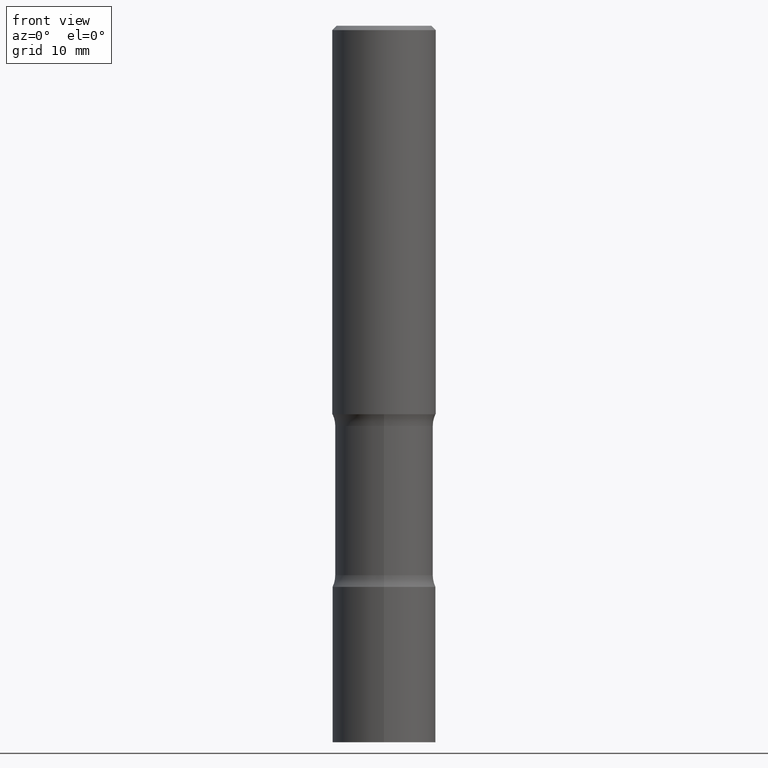
[diagram: clean part render]
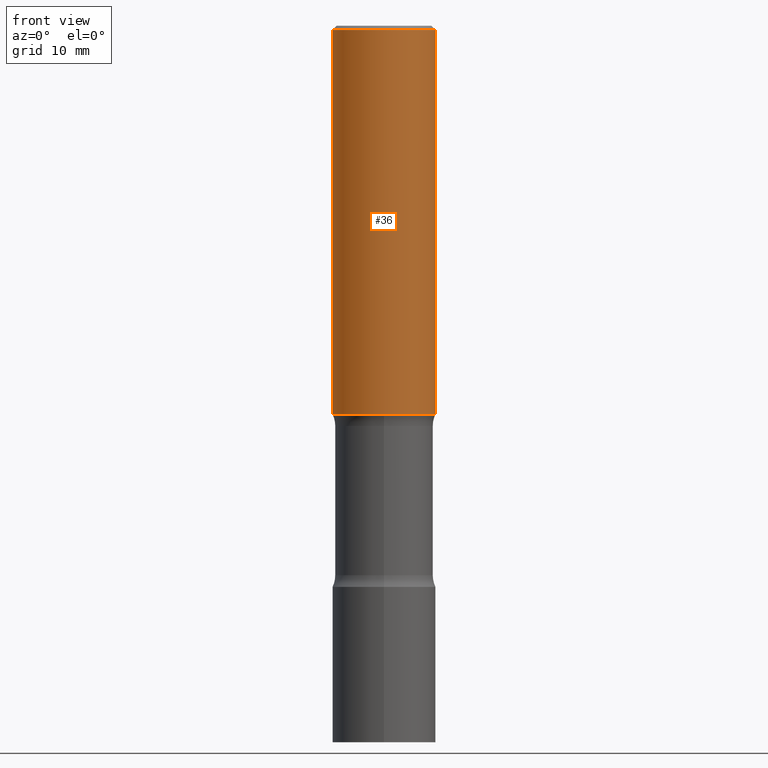
[diagram: same view with one face highlighted and labeled with its STEP entity id]
A machine part, front view. The second image highlights one B-rep face of the part: STEP entity #36.
In plain terms, the highlighted cylindrical surface (partial cylindrical patch) has radius 5.9995 mm, axis along (-0, 0, 1).
Its self-contained STEP definition (entity closure, byte-faithful):
#36 = ADVANCED_FACE ( 'NONE', ( #372 ), #124, .T. ) ;
#38 = VECTOR ( 'NONE', #110, 39.37007874015748143 ) ;
#59 = CARTESIAN_POINT ( 'NONE',  ( 0.2361999999999997712, -1.690279253850497193E-15, -0.02000000000000006981 ) ) ;
#69 = CARTESIAN_POINT ( 'NONE',  ( -0.2361999999999997712, 1.579546157692631452E-15, -0.02000000000000006981 ) ) ;
#75 = AXIS2_PLACEMENT_3D ( 'NONE', #318, #472, #80 ) ;
#76 = ORIENTED_EDGE ( 'NONE', *, *, #429, .T. ) ;
#80 = DIRECTION ( 'NONE',  ( 1.000000000000000000, -6.982962677686266711E-15, 0.000000000000000000 ) ) ;
#83 = AXIS2_PLACEMENT_3D ( 'NONE', #464, #352, #380 ) ;
#98 = CARTESIAN_POINT ( 'NONE',  ( 0.2361999999999999378, -7.834884124364012517E-15, -1.771600000000000064 ) ) ;
#100 = CIRCLE ( 'NONE', #75, 0.2361999999999997712 ) ;
#110 = DIRECTION ( 'NONE',  ( -2.445468806185136877E-29, 3.491481338843145188E-15, 1.000000000000000000 ) ) ;
#124 = CYLINDRICAL_SURFACE ( 'NONE', #242, 0.2361999999999998545 ) ;
#135 = VECTOR ( 'NONE', #197, 39.37007874015748143 ) ;
#169 = LINE ( 'NONE', #292, #135 ) ;
#188 = CARTESIAN_POINT ( 'NONE',  ( -0.2361999999999998545, 1.678301941865355605E-15, -1.161852468318208056E-29 ) ) ;
#197 = DIRECTION ( 'NONE',  ( -2.445468806185136877E-29, 3.491481338843145188E-15, 1.000000000000000000 ) ) ;
#199 = VERTEX_POINT ( 'NONE', #98 ) ;
#212 = CARTESIAN_POINT ( 'NONE',  ( 0.000000000000000000, 0.000000000000000000, 0.000000000000000000 ) ) ;
#225 = VERTEX_POINT ( 'NONE', #59 ) ;
#242 = AXIS2_PLACEMENT_3D ( 'NONE', #212, #249, #366 ) ;
#245 = EDGE_CURVE ( 'NONE', #393, #273, #427, .T. ) ;
#249 = DIRECTION ( 'NONE',  ( -2.445468806185136597E-29, 3.491481338843145583E-15, 1.000000000000000000 ) ) ;
#273 = VERTEX_POINT ( 'NONE', #69 ) ;
#292 = CARTESIAN_POINT ( 'NONE',  ( 0.2361999999999998545, -1.649375784469495145E-15, 1.151752954442999387E-29 ) ) ;
#314 = ORIENTED_EDGE ( 'NONE', *, *, #394, .F. ) ;
#315 = CIRCLE ( 'NONE', #83, 0.2361999999999999378 ) ;
#316 = EDGE_CURVE ( 'NONE', #393, #199, #315, .T. ) ;
#318 = CARTESIAN_POINT ( 'NONE',  ( 4.890937612370289799E-31, -6.982962677686315028E-17, -0.02000000000000006981 ) ) ;
#335 = ORIENTED_EDGE ( 'NONE', *, *, #316, .T. ) ;
#344 = ORIENTED_EDGE ( 'NONE', *, *, #245, .F. ) ;
#352 = DIRECTION ( 'NONE',  ( -2.445468806185136597E-29, 3.491481338843145583E-15, 1.000000000000000000 ) ) ;
#366 = DIRECTION ( 'NONE',  ( 1.000000000000000000, -6.982962677686266711E-15, 4.876176775795935793E-29 ) ) ;
#372 = FACE_OUTER_BOUND ( 'NONE', #433, .T. ) ;
#380 = DIRECTION ( 'NONE',  ( 1.000000000000000000, -6.982962677686266711E-15, 0.000000000000000000 ) ) ;
#393 = VERTEX_POINT ( 'NONE', #475 ) ;
#394 = EDGE_CURVE ( 'NONE', #273, #225, #100, .T. ) ;
#427 = LINE ( 'NONE', #188, #38 ) ;
#429 = EDGE_CURVE ( 'NONE', #199, #225, #169, .T. ) ;
#433 = EDGE_LOOP ( 'NONE', ( #344, #335, #76, #314 ) ) ;
#464 = CARTESIAN_POINT ( 'NONE',  ( 4.332392537037588203E-29, -6.185508339894515992E-15, -1.771600000000000064 ) ) ;
#472 = DIRECTION ( 'NONE',  ( -2.445468806185136597E-29, 3.491481338843145583E-15, 1.000000000000000000 ) ) ;
#475 = CARTESIAN_POINT ( 'NONE',  ( -0.2361999999999999378, -1.449367041470333251E-15, -1.771600000000000064 ) ) ;